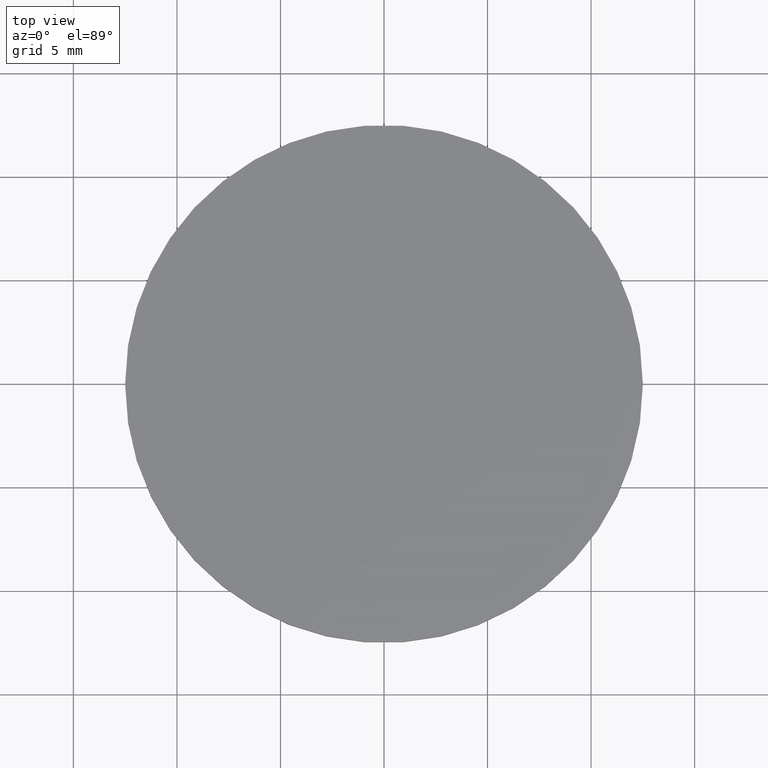
[diagram: clean part render]
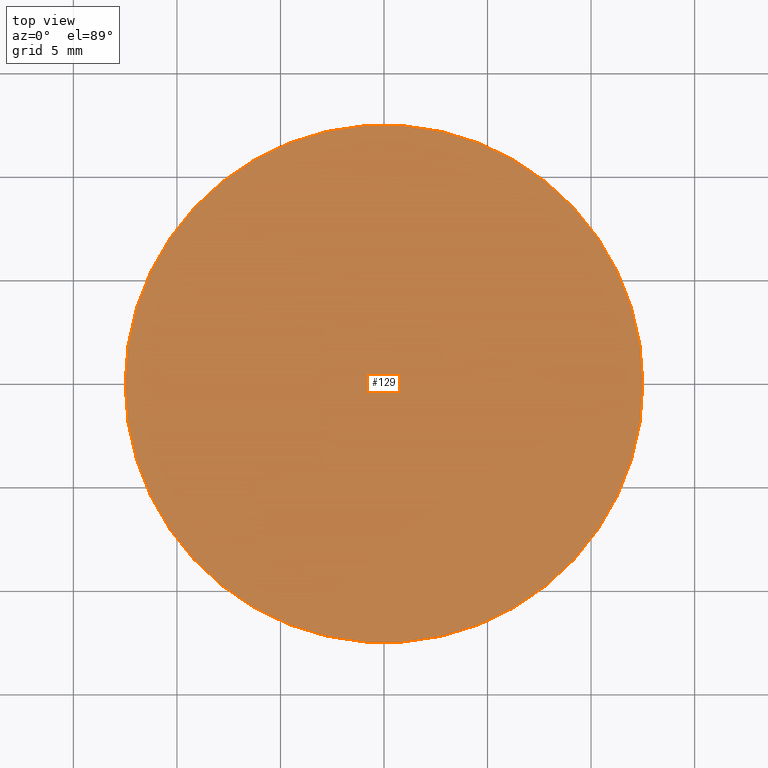
[diagram: same view with one face highlighted and labeled with its STEP entity id]
A machine part, top view. The second image highlights one B-rep face of the part: STEP entity #129.
In plain terms, the highlighted planar face has unit normal (0, 0, 1).
Its self-contained STEP definition (entity closure, byte-faithful):
#4 = CARTESIAN_POINT ( 'NONE',  ( 0.000000000000000000, 0.000000000000000000, 1.100000000000000089 ) ) ;
#12 = CARTESIAN_POINT ( 'NONE',  ( 12.50000000000000000, 0.000000000000000000, 1.100000000000000089 ) ) ;
#34 = PLANE ( 'NONE',  #45 ) ;
#42 = DIRECTION ( 'NONE',  ( 1.000000000000000000, 0.000000000000000000, 0.000000000000000000 ) ) ;
#45 = AXIS2_PLACEMENT_3D ( 'NONE', #124, #97, #135 ) ;
#54 = EDGE_LOOP ( 'NONE', ( #132 ) ) ;
#64 = FACE_OUTER_BOUND ( 'NONE', #54, .T. ) ;
#71 = EDGE_CURVE ( 'NONE', #113, #113, #96, .T. ) ;
#73 = AXIS2_PLACEMENT_3D ( 'NONE', #4, #133, #42 ) ;
#96 = CIRCLE ( 'NONE', #73, 12.50000000000000000 ) ;
#97 = DIRECTION ( 'NONE',  ( 0.000000000000000000, 0.000000000000000000, 1.000000000000000000 ) ) ;
#113 = VERTEX_POINT ( 'NONE', #12 ) ;
#124 = CARTESIAN_POINT ( 'NONE',  ( 0.000000000000000000, 0.000000000000000000, 1.100000000000000089 ) ) ;
#129 = ADVANCED_FACE ( 'NONE', ( #64 ), #34, .T. ) ;
#132 = ORIENTED_EDGE ( 'NONE', *, *, #71, .T. ) ;
#133 = DIRECTION ( 'NONE',  ( 0.000000000000000000, 0.000000000000000000, 1.000000000000000000 ) ) ;
#135 = DIRECTION ( 'NONE',  ( 1.000000000000000000, 0.000000000000000000, -0.000000000000000000 ) ) ;